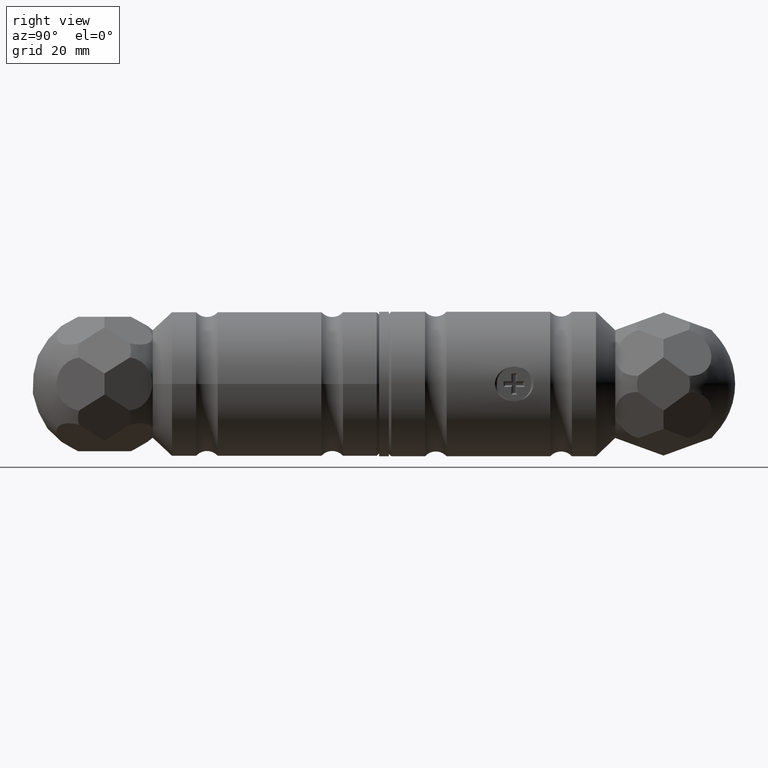
[diagram: clean part render]
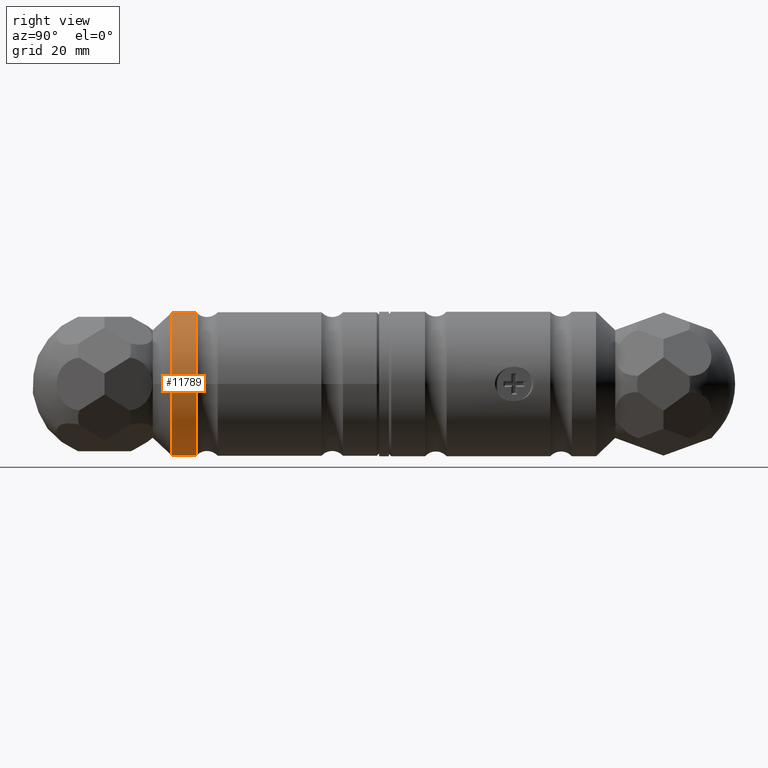
[diagram: same view with one face highlighted and labeled with its STEP entity id]
A machine part, right view. The second image highlights one B-rep face of the part: STEP entity #11789.
In plain terms, the highlighted cylindrical surface (bore or boss wall) has radius 15 mm, axis along (0, 1, -0).
Its self-contained STEP definition (entity closure, byte-faithful):
#142 = CIRCLE ( 'NONE', #6487, 15.00000000000000355 ) ;
#876 = DIRECTION ( 'NONE',  ( 2.749845802210205696E-18, -1.000000000000000000, 0.000000000000000000 ) ) ;
#898 = AXIS2_PLACEMENT_3D ( 'NONE', #10112, #876, #4366 ) ;
#1379 = CYLINDRICAL_SURFACE ( 'NONE', #1436, 15.00000000000000178 ) ;
#1436 = AXIS2_PLACEMENT_3D ( 'NONE', #7585, #11311, #7794 ) ;
#4366 = DIRECTION ( 'NONE',  ( 1.000000000000000000, 0.000000000000000000, 0.000000000000000000 ) ) ;
#4455 = FACE_OUTER_BOUND ( 'NONE', #14669, .T. ) ;
#4488 = CARTESIAN_POINT ( 'NONE',  ( -1.182433694950377437E-16, 43.00000000000000000, 9.629649721936179265E-32 ) ) ;
#5214 = EDGE_CURVE ( 'NONE', #7936, #7936, #10775, .T. ) ;
#5240 = ORIENTED_EDGE ( 'NONE', *, *, #5214, .F. ) ;
#6487 = AXIS2_PLACEMENT_3D ( 'NONE', #4488, #13887, #8043 ) ;
#6522 = EDGE_LOOP ( 'NONE', ( #5240 ) ) ;
#6811 = FACE_OUTER_BOUND ( 'NONE', #6522, .T. ) ;
#7585 = CARTESIAN_POINT ( 'NONE',  ( 0.000000000000000000, 0.000000000000000000, 0.000000000000000000 ) ) ;
#7794 = DIRECTION ( 'NONE',  ( 1.000000000000000000, 2.749845802210205696E-18, 0.000000000000000000 ) ) ;
#7936 = VERTEX_POINT ( 'NONE', #8029 ) ;
#8029 = CARTESIAN_POINT ( 'NONE',  ( 15.00000000000000000, 38.00000000000000000, 9.629649721936179265E-32 ) ) ;
#8043 = DIRECTION ( 'NONE',  ( 1.000000000000000000, 0.000000000000000000, 0.000000000000000000 ) ) ;
#8674 = VERTEX_POINT ( 'NONE', #12857 ) ;
#10112 = CARTESIAN_POINT ( 'NONE',  ( -1.044941404839878141E-16, 38.00000000000000000, 9.629649721936179265E-32 ) ) ;
#10775 = CIRCLE ( 'NONE', #898, 15.00000000000000000 ) ;
#11311 = DIRECTION ( 'NONE',  ( 2.749845802210205696E-18, -1.000000000000000000, 0.000000000000000000 ) ) ;
#11789 = ADVANCED_FACE ( 'NONE', ( #4455, #6811 ), #1379, .T. ) ;
#12504 = ORIENTED_EDGE ( 'NONE', *, *, #13717, .T. ) ;
#12857 = CARTESIAN_POINT ( 'NONE',  ( 15.00000000000000355, 43.00000000000000000, 9.629649721936179265E-32 ) ) ;
#13717 = EDGE_CURVE ( 'NONE', #8674, #8674, #142, .T. ) ;
#13887 = DIRECTION ( 'NONE',  ( 2.749845802210205696E-18, -1.000000000000000000, 0.000000000000000000 ) ) ;
#14669 = EDGE_LOOP ( 'NONE', ( #12504 ) ) ;